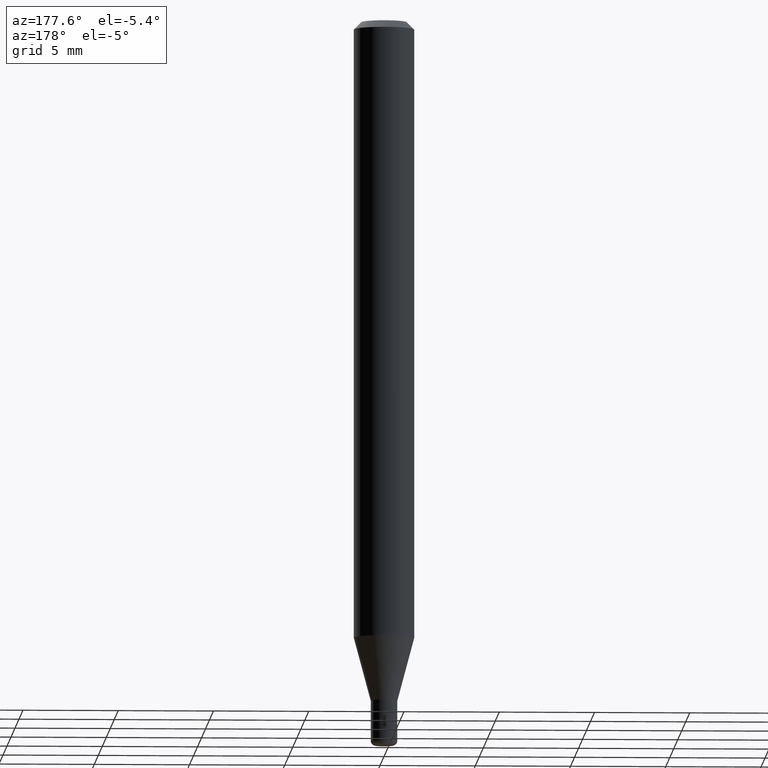
[diagram: clean part render]
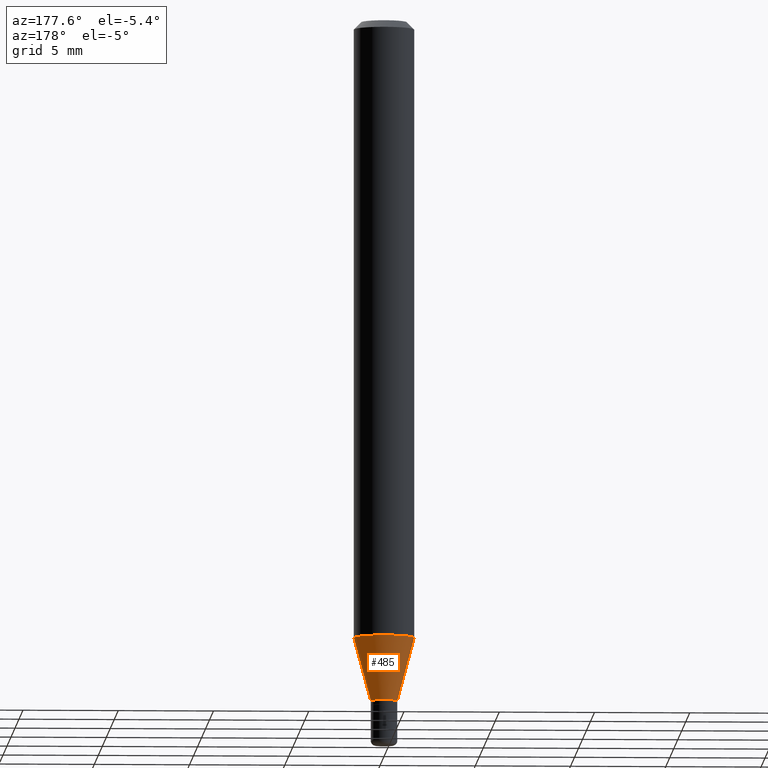
[diagram: same view with one face highlighted and labeled with its STEP entity id]
A machine part, auxiliary view. The second image highlights one B-rep face of the part: STEP entity #485.
In plain terms, the highlighted conical surface has half-angle 15 deg.
Its self-contained STEP definition (entity closure, byte-faithful):
#8 = EDGE_CURVE ( 'NONE', #343, #446, #265, .T. ) ;
#10 = CARTESIAN_POINT ( 'NONE',  ( 3.440774610302487541E-29, -4.912514243752305891E-15, -1.407000000000000028 ) ) ;
#16 = CARTESIAN_POINT ( 'NONE',  ( 0.02749999999999997932, -5.104545717388677595E-15, -1.407000000000000028 ) ) ;
#25 = DIRECTION ( 'NONE',  ( 0.2588190451025207950, 1.565188264969625912E-15, 0.9659258262890682012 ) ) ;
#45 = CARTESIAN_POINT ( 'NONE',  ( 3.121343126147216343E-29, -4.456450742493863778E-15, -1.276378221735089191 ) ) ;
#86 = CARTESIAN_POINT ( 'NONE',  ( 0.02749999999999997932, -5.104545717388677595E-15, -1.407000000000000028 ) ) ;
#99 = DIRECTION ( 'NONE',  ( -0.2588190451025207950, 5.211531920934546309E-15, 0.9659258262890682012 ) ) ;
#123 = ORIENTED_EDGE ( 'NONE', *, *, #205, .F. ) ;
#134 = DIRECTION ( 'NONE',  ( -2.445468806185136597E-29, 3.491481338843145583E-15, 1.000000000000000000 ) ) ;
#137 = AXIS2_PLACEMENT_3D ( 'NONE', #10, #169, #328 ) ;
#140 = ORIENTED_EDGE ( 'NONE', *, *, #442, .T. ) ;
#169 = DIRECTION ( 'NONE',  ( -2.445468806185136597E-29, 3.491481338843145583E-15, 1.000000000000000000 ) ) ;
#179 = CARTESIAN_POINT ( 'NONE',  ( -0.06250000000000000000, -4.012361532643799584E-15, -1.276378221735089191 ) ) ;
#191 = CARTESIAN_POINT ( 'NONE',  ( 3.440774610302487541E-29, -4.912514243752305891E-15, -1.407000000000000028 ) ) ;
#194 = AXIS2_PLACEMENT_3D ( 'NONE', #191, #417, #224 ) ;
#205 = EDGE_CURVE ( 'NONE', #319, #343, #427, .T. ) ;
#214 = ORIENTED_EDGE ( 'NONE', *, *, #8, .F. ) ;
#217 = CARTESIAN_POINT ( 'NONE',  ( -0.02749999999999997932, -4.364738262031038678E-15, -1.407000000000000028 ) ) ;
#224 = DIRECTION ( 'NONE',  ( 1.000000000000000000, -6.982962677686250144E-15, 0.000000000000000000 ) ) ;
#247 = CONICAL_SURFACE ( 'NONE', #194, 0.02749999999999997932, 0.2617993877991495189 ) ;
#265 = CIRCLE ( 'NONE', #368, 0.06250000000000000000 ) ;
#298 = CARTESIAN_POINT ( 'NONE',  ( -0.02749999999999997932, -4.717114991418277772E-15, -1.407000000000000028 ) ) ;
#300 = VERTEX_POINT ( 'NONE', #217 ) ;
#303 = ORIENTED_EDGE ( 'NONE', *, *, #461, .T. ) ;
#315 = VECTOR ( 'NONE', #25, 39.37007874015748854 ) ;
#319 = VERTEX_POINT ( 'NONE', #86 ) ;
#322 = EDGE_LOOP ( 'NONE', ( #140, #303, #214, #123 ) ) ;
#328 = DIRECTION ( 'NONE',  ( 1.000000000000000000, -6.982962677686250144E-15, 0.000000000000000000 ) ) ;
#339 = CARTESIAN_POINT ( 'NONE',  ( 0.06250000000000000000, -4.892885909849253869E-15, -1.276378221735089191 ) ) ;
#343 = VERTEX_POINT ( 'NONE', #339 ) ;
#353 = VECTOR ( 'NONE', #99, 39.37007874015748854 ) ;
#368 = AXIS2_PLACEMENT_3D ( 'NONE', #45, #134, #371 ) ;
#371 = DIRECTION ( 'NONE',  ( 1.000000000000000000, -6.982962677686262766E-15, 0.000000000000000000 ) ) ;
#417 = DIRECTION ( 'NONE',  ( -2.445468806185136597E-29, 3.491481338843145583E-15, 1.000000000000000000 ) ) ;
#427 = LINE ( 'NONE', #16, #315 ) ;
#442 = EDGE_CURVE ( 'NONE', #319, #300, #473, .T. ) ;
#446 = VERTEX_POINT ( 'NONE', #179 ) ;
#461 = EDGE_CURVE ( 'NONE', #300, #446, #500, .T. ) ;
#473 = CIRCLE ( 'NONE', #137, 0.02749999999999997932 ) ;
#485 = ADVANCED_FACE ( 'NONE', ( #493 ), #247, .T. ) ;
#493 = FACE_OUTER_BOUND ( 'NONE', #322, .T. ) ;
#500 = LINE ( 'NONE', #298, #353 ) ;